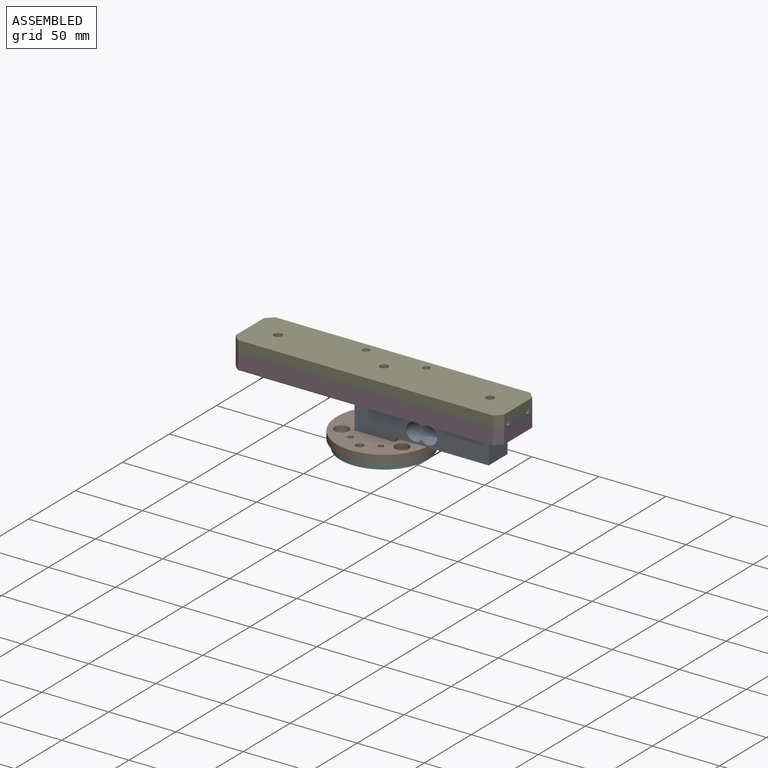
[diagram: assembled view]
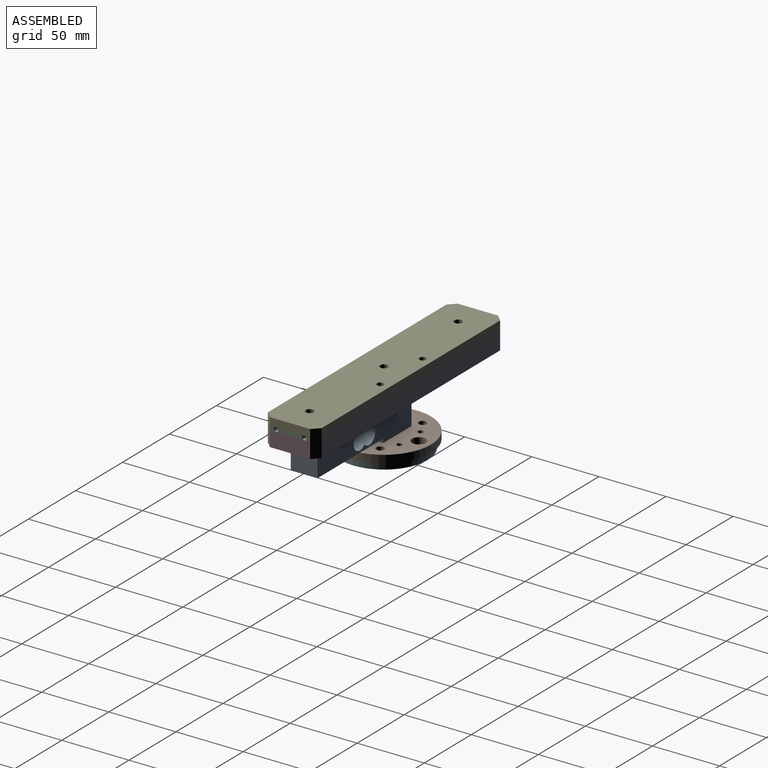
[diagram: assembled view, second angle]
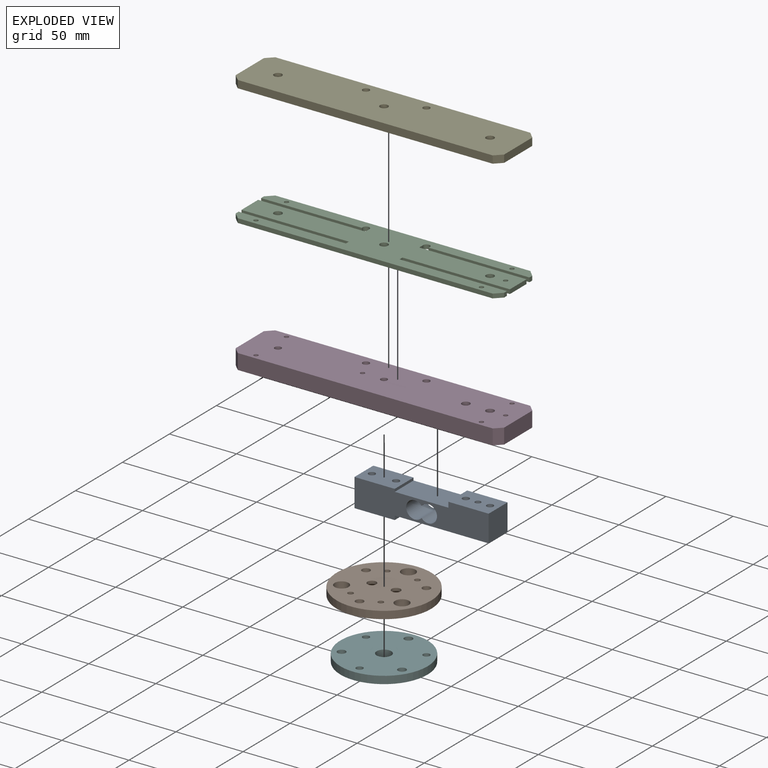
[diagram: exploded view]
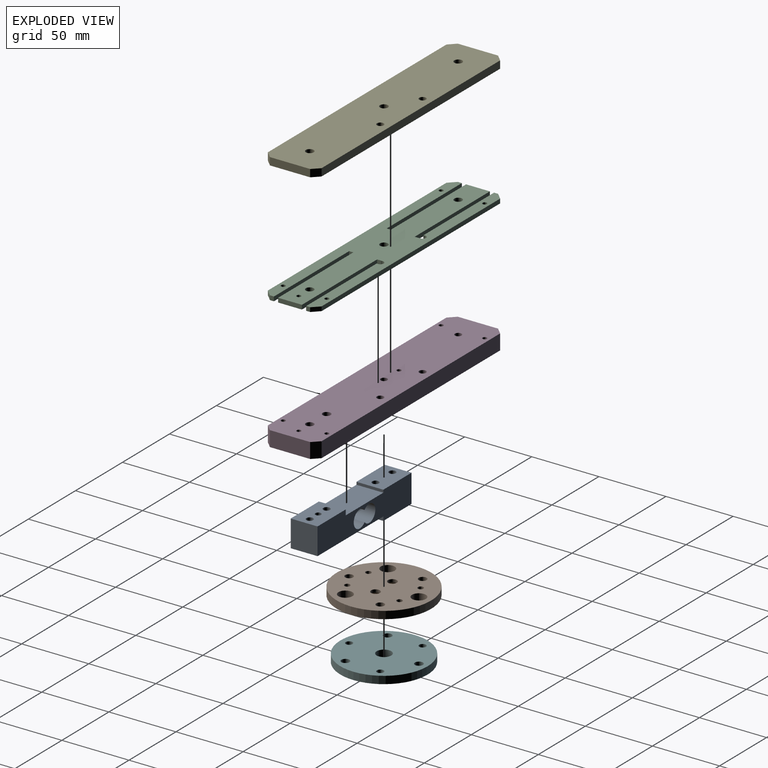
[diagram: exploded view, second angle]
ASSEMBLY  parts=6 mates=5
PART A: 19 faces, bbox 100x20x23 mm
  f0: plane 20x2mm, normal (1,0,0), area 40mm2, adj f1,f11,f12,f13
  f1: plane 30x20mm, normal (0,0,1), area 560.7mm2, adj f0,f2,f12,f13,f14,f15
  f2: plane 21x20mm, normal (-1,0,0), area 420mm2, adj f1,f3,f12,f13
  f3: plane 30x20mm, normal (0,0,-1), area 560.7mm2, adj f2,f4,f12,f13,f14,f15
  f4: plane 20x3mm, normal (1,0,0), area 60mm2, adj f3,f5,f12,f13
  f5: plane 70x20mm, normal (0,0,-1), area 1346.9mm2, adj f4,f6,f12,f13,f16,f17,f18
  f6: plane 20x20mm, normal (1,0,0), area 400mm2, adj f5,f7,f12,f13
  f7: plane 30x20mm, normal (0,0,1), area 546.9mm2, adj f6,f8,f12,f13,f16,f17,f18
  f8: plane 20x4mm, normal (-1,0,0), area 80mm2, adj f7,f11,f12,f13
  f9: cylinder r=6.5mm len=20mm, axis (0,1,0), area 636.6mm2, adj f10,f12,f13
  f10: cylinder r=6.5mm len=20mm, axis (0,1,0), area 636.6mm2, adj f9,f12,f13
  f11: plane 40x20mm, normal (0,0,1), area 800mm2, adj f0,f8,f12,f13
  f12: plane 100x23mm, normal (0,-1,0), area 1621.6mm2, adj f0,f1,f2,f3,f4,f5,f6,f7
  f13: plane 100x23mm, normal (0,1,0), area 1621.6mm2, adj f0,f1,f2,f3,f4,f5,f6,f7
  f14: cylinder r=2.5mm len=21mm, axis (0,0,1), area 329.9mm2, adj f1,f3
  f15: cylinder r=2.5mm len=21mm, axis (0,0,1), area 329.9mm2, adj f1,f3
  f16: cylinder r=2.5mm len=20mm, axis (0,0,1), area 314.2mm2, adj f5,f7
  f17: cylinder r=2.5mm len=20mm, axis (0,0,1), area 314.2mm2, adj f5,f7
  f18: cylinder r=2.1mm len=20mm, axis (0,0,1), area 263.9mm2, adj f5,f7
PART B: 17 faces, bbox 70.4x70.4x5.6 mm
  f0: cylinder r=2.05mm len=5.6mm, axis (0,0,-1), area 72.1mm2, adj f11,f12
  f1: cylinder r=2.05mm len=5.6mm, axis (0,0,-1), area 72.1mm2, adj f11,f12
  f2: cylinder r=2.05mm len=5.6mm, axis (0,0,-1), area 72.1mm2, adj f11,f12
  f3: cylinder r=5.2mm len=10.4mm, axis (0,0,-1), area 183mm2, adj f11,f12
  f4: cylinder r=5.2mm len=10.4mm, axis (0,0,-1), area 183mm2, adj f11,f12
  f5: cylinder r=5.2mm len=10.4mm, axis (0,0,-1), area 183mm2, adj f11,f12
  f6: cylinder r=2.95mm len=5.9mm, axis (0,0,-1), area 103.8mm2, adj f11,f12
  f7: cylinder r=2.95mm len=5.9mm, axis (0,0,-1), area 103.8mm2, adj f11,f12
  f8: cylinder r=2.95mm len=5.9mm, axis (0,0,-1), area 103.8mm2, adj f11,f12
  f9: cylinder r=35.19mm len=70.38mm, axis (0,0,-1), area 1238.1mm2, adj f11,f12
  f10: cylinder r=2.05mm len=5.6mm, axis (0,0,-1), area 72.1mm2, adj f11,f12
  f11: plane 70.38x70.38mm, normal (0,0,1), area 3431.8mm2, adj f0,f1,f2,f3,f4,f5,f6,f7
  f12: plane 70.38x70.38mm, normal (0,0,-1), area 3216.4mm2, adj f0,f1,f2,f3,f4,f5,f6,f7
  f13: cylinder r=3.3mm len=6.6mm, axis (0,0,-1), area 45.2mm2, adj f11,f14
  f14: cone r=3.3mm half-angle=45deg, axis (0,0,-1), area 152.3mm2, adj f12,f13
  f15: cylinder r=3.3mm len=6.6mm, axis (0,0,-1), area 45.2mm2, adj f11,f16
  f16: cone r=3.3mm half-angle=45deg, axis (0,0,-1), area 152.3mm2, adj f12,f15
PART C: 38 faces, bbox 200x40x3.2 mm
  f0: plane 3.2x0.24mm, normal (0,-1,0), area 0.8mm2, adj f32,f34,f35,f36
  f1: plane 3.2x0.24mm, normal (0,-1,0), area 0.8mm2, adj f9,f34,f35,f37
  f2: plane 75.2x3.2mm, normal (0,-1,0), area 240.6mm2, adj f3,f34,f35,f36
  f3: plane 3.2x3mm, normal (1,0,0), area 9.6mm2, adj f2,f4,f34,f35
  f4: plane 5x5mm, normal (0.71,0.71,0), area 22.6mm2, adj f3,f5,f34,f35
  f5: plane 190x3.2mm, normal (0,1,0), area 608mm2, adj f4,f6,f34,f35
  f6: plane 5x5mm, normal (-0.71,0.71,0), area 22.6mm2, adj f5,f7,f34,f35
  f7: plane 3.2x3mm, normal (-1,0,0), area 9.6mm2, adj f6,f8,f34,f35
  f8: plane 75.2x3.2mm, normal (0,-1,0), area 240.6mm2, adj f7,f34,f35,f37
  f9: plane 3.2x3.13mm, normal (-1,0,0), area 10mm2, adj f1,f10,f34,f35
  f10: plane 80x3.2mm, normal (0,1,0), area 256mm2, adj f9,f11,f34,f35
  f11: plane 17.74x3.2mm, normal (-1,0,0), area 56.8mm2, adj f10,f12,f34,f35
  f12: plane 80x3.2mm, normal (0,-1,0), area 256mm2, adj f11,f13,f34,f35
  f13: plane 3.2x3.13mm, normal (-1,0,0), area 10mm2, adj f12,f14,f34,f35
  f14: plane 80x3.2mm, normal (0,1,0), area 256mm2, adj f13,f15,f34,f35
  f15: plane 3.2x3mm, normal (-1,0,0), area 9.6mm2, adj f14,f16,f34,f35
  f16: plane 5x5mm, normal (-0.71,-0.71,0), area 22.6mm2, adj f15,f17,f34,f35
  f17: plane 190x3.2mm, normal (0,-1,0), area 608mm2, adj f16,f18,f34,f35
  f18: plane 5x5mm, normal (0.71,-0.71,0), area 22.6mm2, adj f17,f19,f34,f35
  f19: plane 3.2x3mm, normal (1,0,0), area 9.6mm2, adj f18,f20,f34,f35
  f20: plane 80x3.2mm, normal (0,1,0), area 256mm2, adj f19,f21,f34,f35
  f21: plane 3.2x3.13mm, normal (1,0,0), area 10mm2, adj f20,f22,f34,f35
  f22: plane 80x3.2mm, normal (0,-1,0), area 256mm2, adj f21,f23,f34,f35
  f23: plane 17.74x3.2mm, normal (1,0,0), area 56.8mm2, adj f22,f24,f34,f35
  f24: plane 80x3.2mm, normal (0,1,0), area 256mm2, adj f23,f32,f34,f35
  f25: cylinder r=2.95mm len=5.9mm, axis (0,0,-1), area 59.3mm2, adj f34,f35
  f26: cylinder r=1.6mm len=3.2mm, axis (0,0,-1), area 32.2mm2, adj f34,f35
  f27: cylinder r=1.6mm len=3.2mm, axis (0,0,-1), area 32.2mm2, adj f34,f35
  f28: cylinder r=1.6mm len=3.2mm, axis (0,0,-1), area 32.2mm2, adj f34,f35
  f29: cylinder r=1.6mm len=3.2mm, axis (0,0,-1), area 32.2mm2, adj f34,f35
  f30: cylinder r=2.95mm len=5.9mm, axis (0,0,-1), area 59.3mm2, adj f34,f35
  f31: cylinder r=1.6mm len=3.2mm, axis (0,0,-1), area 32.2mm2, adj f34,f35
  f32: plane 3.2x3.13mm, normal (1,0,0), area 10mm2, adj f0,f24,f34,f35
  f33: cylinder r=2.95mm len=5.9mm, axis (0,0,-1), area 59.3mm2, adj f34,f35
  f34: plane 200x40mm, normal (0,0,1), area 6796.6mm2, adj f0,f1,f2,f3,f4,f5,f6,f7
  f35: plane 200x40mm, normal (0,0,-1), area 6796.6mm2, adj f0,f1,f2,f3,f4,f5,f6,f7
  f36: cylinder r=2.5mm len=5mm, axis (0,0,-1), area 31.9mm2, adj f0,f2,f34,f35
  f37: cylinder r=2.5mm len=5mm, axis (0,0,-1), area 31.9mm2, adj f1,f8,f34,f35
PART D: 22 faces, bbox 200x40x11.4 mm
  f0: plane 11.4x5mm, normal (0.71,-0.71,0), area 80.6mm2, adj f1,f14,f18,f19
  f1: plane 30x11.4mm, normal (1,0,0), area 342mm2, adj f0,f2,f18,f19
  f2: plane 11.4x5mm, normal (0.71,0.71,0), area 80.6mm2, adj f1,f3,f18,f19
  f3: plane 190x11.4mm, normal (0,1,0), area 2166mm2, adj f2,f4,f18,f19
  f4: plane 11.4x5mm, normal (-0.71,0.71,0), area 80.6mm2, adj f3,f5,f18,f19
  f5: plane 30x11.4mm, normal (-1,0,0), area 342mm2, adj f4,f6,f18,f19
  f6: plane 11.4x5mm, normal (-0.71,-0.71,0), area 80.6mm2, adj f5,f14,f18,f19
  f7: cylinder r=2.45mm len=11.4mm, axis (0,0,-1), area 175.5mm2, adj f18,f19
  f8: cylinder r=1.6mm len=11.4mm, axis (0,0,-1), area 114.6mm2, adj f18,f19
  f9: cylinder r=1.6mm len=11.4mm, axis (0,0,-1), area 114.6mm2, adj f18,f19
  f10: cylinder r=2.45mm len=11.4mm, axis (0,0,-1), area 175.5mm2, adj f18,f19
  f11: cylinder r=1.6mm len=11.4mm, axis (0,0,-1), area 114.6mm2, adj f18,f19
  f12: cylinder r=1.6mm len=11.4mm, axis (0,0,-1), area 114.6mm2, adj f18,f19
  f13: cylinder r=1.6mm len=11.4mm, axis (0,0,-1), area 114.6mm2, adj f18,f19
  f14: plane 190x11.4mm, normal (0,-1,0), area 2166mm2, adj f0,f6,f18,f19
  f15: cylinder r=2.95mm len=11.4mm, axis (0,0,-1), area 211.3mm2, adj f18,f19
  f16: cylinder r=2.95mm len=11.4mm, axis (0,0,-1), area 211.3mm2, adj f18,f19
  f17: cylinder r=1.6mm len=11.4mm, axis (0,0,-1), area 114.6mm2, adj f18,f19
  f18: plane 200x40mm, normal (0,0,1), area 7770.1mm2, adj f0,f1,f2,f3,f4,f5,f6,f7
  f19: plane 200x40mm, normal (0,0,-1), area 7770.1mm2, adj f0,f1,f2,f3,f4,f5,f6,f7
  f20: cylinder r=2.5mm len=11.4mm, axis (0,0,-1), area 179.1mm2, adj f18,f19
  f21: cylinder r=2.5mm len=11.4mm, axis (0,0,-1), area 179.1mm2, adj f18,f19
PART E: 15 faces, bbox 200x40x5.6 mm
  f0: plane 30x5.6mm, normal (1,0,0), area 168mm2, adj f1,f9,f11,f12
  f1: plane 5.6x5mm, normal (0.71,0.71,0), area 39.6mm2, adj f0,f2,f11,f12
  f2: plane 190x5.6mm, normal (0,1,0), area 1064mm2, adj f1,f3,f11,f12
  f3: plane 5.6x5mm, normal (-0.71,0.71,0), area 39.6mm2, adj f2,f4,f11,f12
  f4: plane 30x5.6mm, normal (-1,0,0), area 168mm2, adj f3,f5,f11,f12
  f5: plane 5.6x5mm, normal (-0.71,-0.71,0), area 39.6mm2, adj f4,f6,f11,f12
  f6: plane 190x5.6mm, normal (0,-1,0), area 1064mm2, adj f5,f9,f11,f12
  f7: cylinder r=2.95mm len=5.9mm, axis (0,0,-1), area 103.8mm2, adj f11,f12
  f8: cylinder r=2.95mm len=5.9mm, axis (0,0,-1), area 103.8mm2, adj f11,f12
  f9: plane 5.6x5mm, normal (0.71,-0.71,0), area 39.6mm2, adj f0,f6,f11,f12
  f10: cylinder r=2.95mm len=5.9mm, axis (0,0,-1), area 103.8mm2, adj f11,f12
  f11: plane 200x40mm, normal (0,0,1), area 7828.7mm2, adj f0,f1,f2,f3,f4,f5,f6,f7
  f12: plane 200x40mm, normal (0,0,-1), area 7828.7mm2, adj f0,f1,f2,f3,f4,f5,f6,f7
  f13: cylinder r=2.5mm len=5.6mm, axis (0,0,-1), area 88mm2, adj f11,f12
  f14: cylinder r=2.5mm len=5.6mm, axis (0,0,-1), area 88mm2, adj f11,f12
PART F: 10 faces, bbox 65x65x5.6 mm
  f0: cylinder r=3mm len=6mm, axis (0,0,-1), area 105.6mm2, adj f8,f9
  f1: cylinder r=2.5mm len=5.6mm, axis (0,0,-1), area 88mm2, adj f8,f9
  f2: cylinder r=5.45mm len=10.9mm, axis (0,0,-1), area 191.8mm2, adj f8,f9
  f3: cylinder r=32.5mm len=65mm, axis (0,0,-1), area 1143.5mm2, adj f8,f9
  f4: cylinder r=3mm len=6mm, axis (0,0,-1), area 105.6mm2, adj f8,f9
  f5: cylinder r=2.5mm len=5.6mm, axis (0,0,-1), area 88mm2, adj f8,f9
  f6: cylinder r=3mm len=6mm, axis (0,0,-1), area 105.6mm2, adj f8,f9
  f7: cylinder r=2.5mm len=5.6mm, axis (0,0,-1), area 88mm2, adj f8,f9
  f8: plane 65x65mm, normal (0,0,1), area 3081.3mm2, adj f0,f1,f2,f3,f4,f5,f6,f7
  f9: plane 65x65mm, normal (0,0,-1), area 3081.3mm2, adj f0,f1,f2,f3,f4,f5,f6,f7
PLACE A t=(-15,10,8.4)mm
PLACE B t=(67.17,17.35,-2.8)mm
PLACE C t=(-15,10,8.4)mm
PLACE D t=(-15,10,8.4)mm
PLACE E t=(-15,10,8.4)mm
PLACE F t=(67.17,17.35,-2.8)mm
MATE fastened C.f30 <-> D.f16  axis (0,0,-1) through (79,0,42.8)mm
MATE fastened B.f4 <-> F.f4  axis (0,0,-1) through (-22.52,-12.98,2.8)mm
MATE fastened D.f16 <-> A.f17  axis (0,0,-1) through (79,0,31.4)mm
MATE fastened A.f14 <-> B.f13  axis (0,0,-1) through (-9,0,8.4)mm
MATE fastened C.f30 <-> E.f8  axis (0,0,1) through (79,0,46)mm
